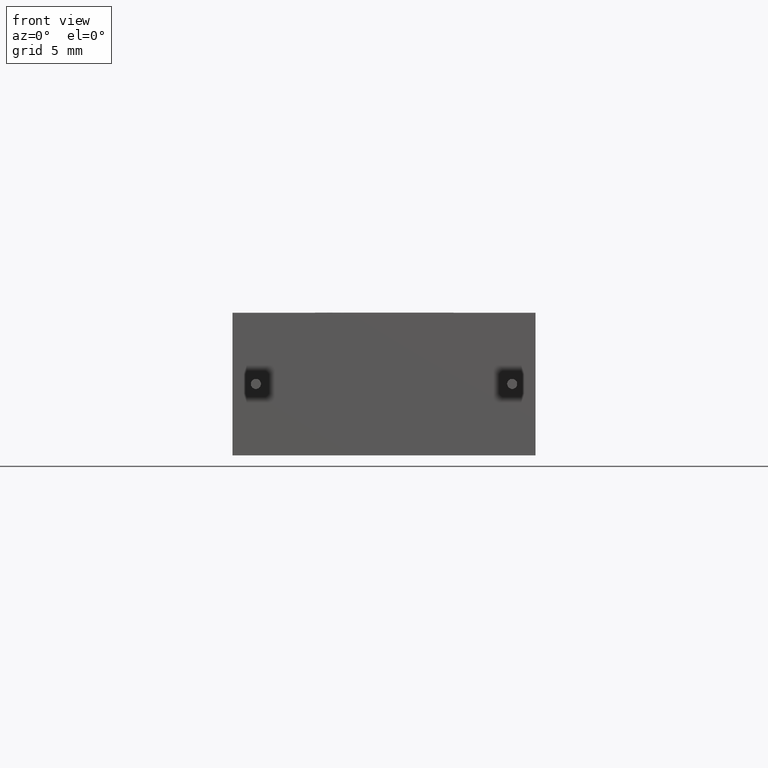
[diagram: clean part render]
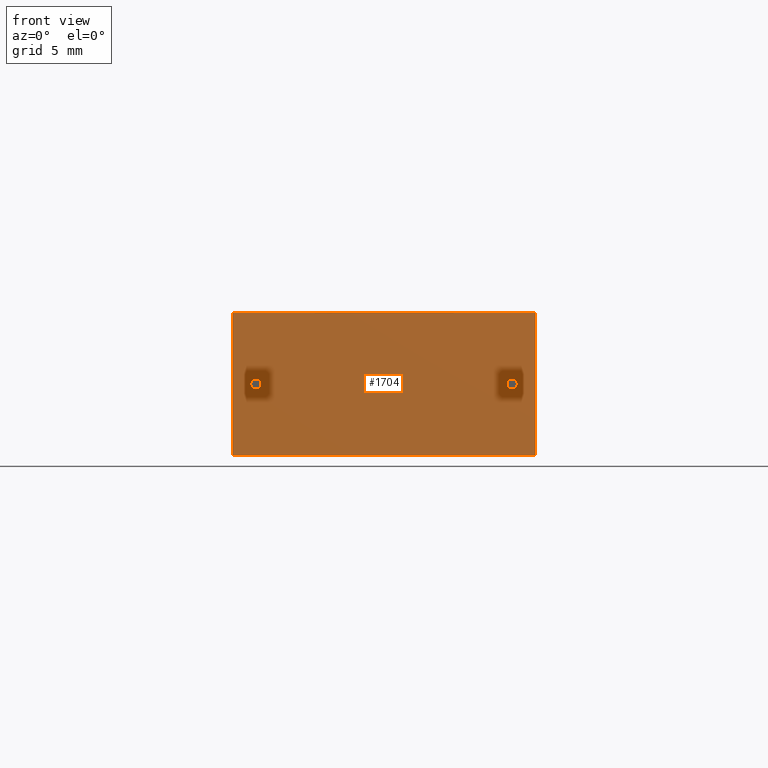
[diagram: same view with one face highlighted and labeled with its STEP entity id]
A machine part, front view. The second image highlights one B-rep face of the part: STEP entity #1704.
In plain terms, the highlighted planar face has unit normal (0, 1, 0).
Its self-contained STEP definition (entity closure, byte-faithful):
#7 = DIRECTION ( 'NONE',  ( -0.0000000000000000000, -1.000000000000000000, -0.0000000000000000000 ) ) ;
#15 = EDGE_CURVE ( 'NONE', #81, #2217, #2466, .T. ) ;
#48 = CARTESIAN_POINT ( 'NONE',  ( 0.0000000000000000000, 0.0000000000000000000, 0.0000000000000000000 ) ) ;
#72 = CIRCLE ( 'NONE', #530, 0.4000000000000001900 ) ;
#81 = VERTEX_POINT ( 'NONE', #2138 ) ;
#94 = LINE ( 'NONE', #618, #1244 ) ;
#130 = CARTESIAN_POINT ( 'NONE',  ( 22.15000000000000200, 0.0000000000000000000, 6.050000000000000700 ) ) ;
#154 = CARTESIAN_POINT ( 'NONE',  ( 0.0000000000000000000, 0.0000000000000000000, 11.30000000000000100 ) ) ;
#160 = DIRECTION ( 'NONE',  ( 0.0000000000000000000, 1.000000000000000000, 0.0000000000000000000 ) ) ;
#198 = DIRECTION ( 'NONE',  ( 0.0000000000000000000, 0.0000000000000000000, 1.000000000000000000 ) ) ;
#215 = DIRECTION ( 'NONE',  ( 0.0000000000000000000, 0.0000000000000000000, -1.000000000000000000 ) ) ;
#243 = DIRECTION ( 'NONE',  ( -0.0000000000000000000, 1.000000000000000000, -0.0000000000000000000 ) ) ;
#244 = CARTESIAN_POINT ( 'NONE',  ( 24.00000000000000000, 0.0000000000000000000, 11.30000000000000100 ) ) ;
#271 = CARTESIAN_POINT ( 'NONE',  ( 24.00000000000000000, 0.0000000000000000000, 0.0000000000000000000 ) ) ;
#285 = EDGE_LOOP ( 'NONE', ( #793, #2034 ) ) ;
#331 = AXIS2_PLACEMENT_3D ( 'NONE', #1728, #243, #1583 ) ;
#340 = ORIENTED_EDGE ( 'NONE', *, *, #2144, .F. ) ;
#369 = CARTESIAN_POINT ( 'NONE',  ( 1.849999999999999200, 0.0000000000000000000, 5.650000000000000400 ) ) ;
#406 = CARTESIAN_POINT ( 'NONE',  ( 0.0000000000000000000, 0.0000000000000000000, 11.30000000000000100 ) ) ;
#413 = PLANE ( 'NONE',  #2406 ) ;
#429 = CARTESIAN_POINT ( 'NONE',  ( 22.15000000000000200, 0.0000000000000000000, 5.650000000000000400 ) ) ;
#438 = CIRCLE ( 'NONE', #331, 0.4000000000000001900 ) ;
#459 = FACE_BOUND ( 'NONE', #285, .T. ) ;
#468 = EDGE_CURVE ( 'NONE', #2470, #81, #2194, .T. ) ;
#508 = EDGE_LOOP ( 'NONE', ( #814, #2011, #340, #1142 ) ) ;
#530 = AXIS2_PLACEMENT_3D ( 'NONE', #369, #1536, #1919 ) ;
#535 = CARTESIAN_POINT ( 'NONE',  ( 0.0000000000000000000, 0.0000000000000000000, 11.30000000000000100 ) ) ;
#537 = DIRECTION ( 'NONE',  ( -0.0000000000000000000, -0.0000000000000000000, -1.000000000000000000 ) ) ;
#618 = CARTESIAN_POINT ( 'NONE',  ( 0.0000000000000000000, 0.0000000000000000000, 11.30000000000000100 ) ) ;
#676 = EDGE_CURVE ( 'NONE', #2187, #1412, #438, .T. ) ;
#710 = AXIS2_PLACEMENT_3D ( 'NONE', #952, #7, #198 ) ;
#793 = ORIENTED_EDGE ( 'NONE', *, *, #1089, .T. ) ;
#812 = DIRECTION ( 'NONE',  ( 1.000000000000000000, 0.0000000000000000000, 0.0000000000000000000 ) ) ;
#814 = ORIENTED_EDGE ( 'NONE', *, *, #15, .T. ) ;
#948 = LINE ( 'NONE', #244, #978 ) ;
#952 = CARTESIAN_POINT ( 'NONE',  ( 1.849999999999999200, 0.0000000000000000000, 5.650000000000000400 ) ) ;
#978 = VECTOR ( 'NONE', #2164, 1000.000000000000000 ) ;
#1003 = CARTESIAN_POINT ( 'NONE',  ( 22.15000000000000200, 0.0000000000000000000, 5.250000000000000000 ) ) ;
#1026 = EDGE_LOOP ( 'NONE', ( #1173, #2246 ) ) ;
#1089 = EDGE_CURVE ( 'NONE', #1412, #2187, #1721, .T. ) ;
#1142 = ORIENTED_EDGE ( 'NONE', *, *, #468, .T. ) ;
#1173 = ORIENTED_EDGE ( 'NONE', *, *, #1256, .F. ) ;
#1244 = VECTOR ( 'NONE', #812, 1000.000000000000000 ) ;
#1256 = EDGE_CURVE ( 'NONE', #2455, #2419, #72, .T. ) ;
#1313 = EDGE_CURVE ( 'NONE', #2086, #2217, #948, .T. ) ;
#1372 = DIRECTION ( 'NONE',  ( -0.0000000000000000000, 1.000000000000000000, -0.0000000000000000000 ) ) ;
#1412 = VERTEX_POINT ( 'NONE', #130 ) ;
#1450 = FACE_OUTER_BOUND ( 'NONE', #508, .T. ) ;
#1536 = DIRECTION ( 'NONE',  ( -0.0000000000000000000, -1.000000000000000000, -0.0000000000000000000 ) ) ;
#1546 = CARTESIAN_POINT ( 'NONE',  ( 1.849999999999999200, 0.0000000000000000000, 5.250000000000000000 ) ) ;
#1583 = DIRECTION ( 'NONE',  ( 0.0000000000000000000, 0.0000000000000000000, -1.000000000000000000 ) ) ;
#1704 = ADVANCED_FACE ( 'NONE', ( #459, #1450, #2185 ), #413, .F. ) ;
#1718 = CIRCLE ( 'NONE', #710, 0.4000000000000001900 ) ;
#1721 = CIRCLE ( 'NONE', #2340, 0.4000000000000001900 ) ;
#1728 = CARTESIAN_POINT ( 'NONE',  ( 22.15000000000000200, 0.0000000000000000000, 5.650000000000000400 ) ) ;
#1909 = VECTOR ( 'NONE', #537, 1000.000000000000000 ) ;
#1919 = DIRECTION ( 'NONE',  ( 0.0000000000000000000, 0.0000000000000000000, 1.000000000000000000 ) ) ;
#1921 = CARTESIAN_POINT ( 'NONE',  ( 24.00000000000000000, 0.0000000000000000000, 11.30000000000000100 ) ) ;
#1928 = EDGE_CURVE ( 'NONE', #2419, #2455, #1718, .T. ) ;
#2011 = ORIENTED_EDGE ( 'NONE', *, *, #1313, .F. ) ;
#2034 = ORIENTED_EDGE ( 'NONE', *, *, #676, .T. ) ;
#2086 = VERTEX_POINT ( 'NONE', #1921 ) ;
#2111 = VECTOR ( 'NONE', #2147, 1000.000000000000000 ) ;
#2127 = DIRECTION ( 'NONE',  ( 0.0000000000000000000, -0.0000000000000000000, 1.000000000000000000 ) ) ;
#2138 = CARTESIAN_POINT ( 'NONE',  ( 0.0000000000000000000, 0.0000000000000000000, 0.0000000000000000000 ) ) ;
#2144 = EDGE_CURVE ( 'NONE', #2470, #2086, #94, .T. ) ;
#2147 = DIRECTION ( 'NONE',  ( 1.000000000000000000, 0.0000000000000000000, 0.0000000000000000000 ) ) ;
#2164 = DIRECTION ( 'NONE',  ( -0.0000000000000000000, -0.0000000000000000000, -1.000000000000000000 ) ) ;
#2185 = FACE_BOUND ( 'NONE', #1026, .T. ) ;
#2187 = VERTEX_POINT ( 'NONE', #1003 ) ;
#2194 = LINE ( 'NONE', #154, #1909 ) ;
#2217 = VERTEX_POINT ( 'NONE', #271 ) ;
#2246 = ORIENTED_EDGE ( 'NONE', *, *, #1928, .F. ) ;
#2287 = CARTESIAN_POINT ( 'NONE',  ( 1.849999999999999200, 0.0000000000000000000, 6.050000000000000700 ) ) ;
#2340 = AXIS2_PLACEMENT_3D ( 'NONE', #429, #1372, #215 ) ;
#2406 = AXIS2_PLACEMENT_3D ( 'NONE', #535, #160, #2127 ) ;
#2419 = VERTEX_POINT ( 'NONE', #1546 ) ;
#2455 = VERTEX_POINT ( 'NONE', #2287 ) ;
#2466 = LINE ( 'NONE', #48, #2111 ) ;
#2470 = VERTEX_POINT ( 'NONE', #406 ) ;